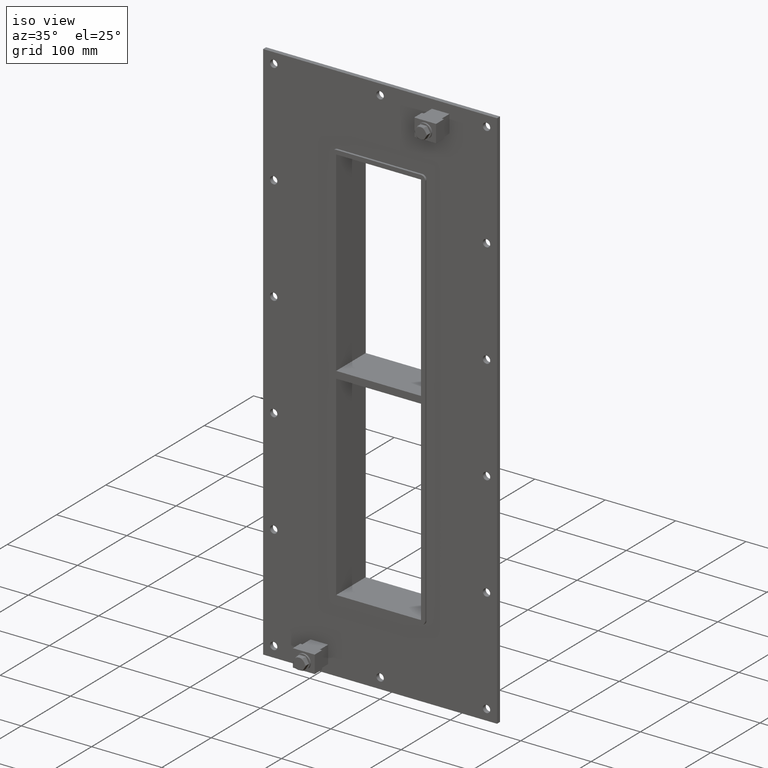
[diagram: clean part render]
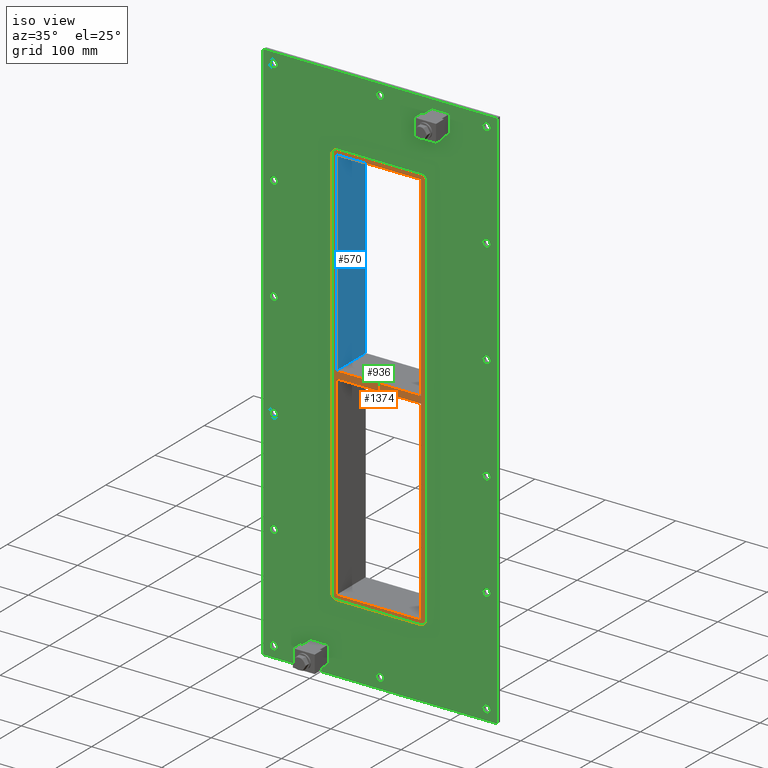
[diagram: same view with three faces highlighted in distinct colors, each labeled with its STEP entity id]
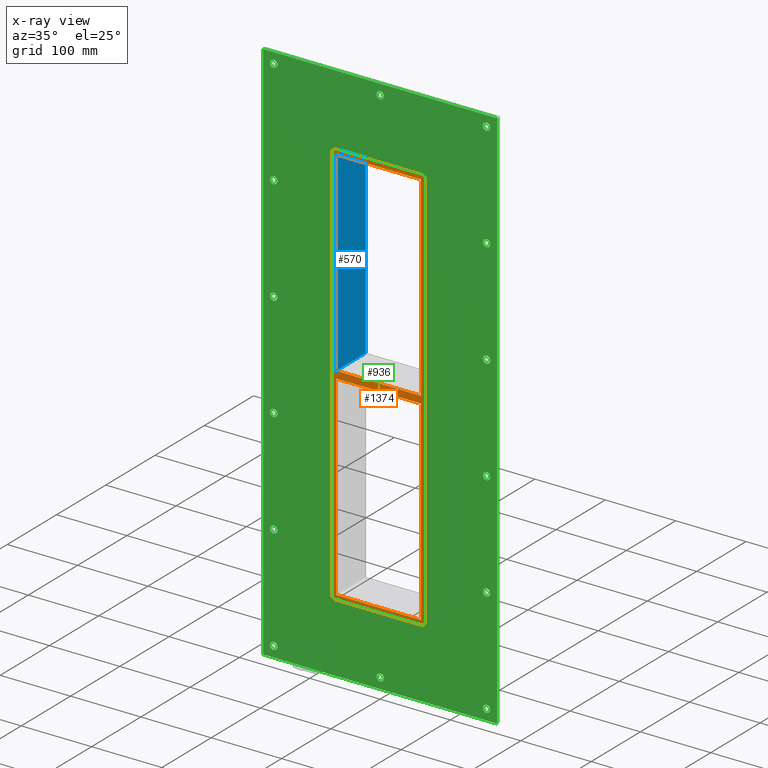
[diagram: x-ray of the same camera — body ghosted, the three highlighted faces saturated]
A machine part, iso view with three faces highlighted in distinct colors.
The next image is the same camera in x-ray (body ghosted, the three faces saturated) — at least one of them is partly hidden behind the body in this view.
Their STEP definitions:

[orange] entity #1374 — the highlighted planar face has unit normal (0, 1, 0).
#465=CARTESIAN_POINT('',(60.249999999996362,-3.0,-5.000000000010907));
#466=VERTEX_POINT('',#465);
#467=CARTESIAN_POINT('',(-60.249999999997627,-3.0,-5.000000000011369));
#468=VERTEX_POINT('',#467);
#469=CARTESIAN_POINT('',(60.249999999996362,-3.0,-5.000000000010907));
#470=DIRECTION('',(-1.0,0.0,0.0));
#471=VECTOR('',#470,120.49999999999399);
#472=LINE('',#469,#471);
#473=EDGE_CURVE('',#466,#468,#472,.T.);
#505=CARTESIAN_POINT('',(-60.249999999997634,-3.0,5.0));
#506=VERTEX_POINT('',#505);
#507=CARTESIAN_POINT('',(60.249999999999211,-3.0,5.0));
#508=VERTEX_POINT('',#507);
#509=CARTESIAN_POINT('',(-60.249999999997634,-3.0,5.0));
#510=DIRECTION('',(1.0,0.0,0.0));
#511=VECTOR('',#510,120.49999999999685);
#512=LINE('',#509,#511);
#513=EDGE_CURVE('',#506,#508,#512,.T.);
#554=CARTESIAN_POINT('',(-60.25,-3.0,283.0));
#555=VERTEX_POINT('',#554);
#562=CARTESIAN_POINT('',(-60.25,-3.0,5.0));
#563=DIRECTION('',(0.0,0.0,1.0));
#564=VECTOR('',#563,278.0);
#565=LINE('',#562,#564);
#566=EDGE_CURVE('',#506,#555,#565,.T.);
#585=CARTESIAN_POINT('',(60.25,-3.0,-283.0));
#586=VERTEX_POINT('',#585);
#593=CARTESIAN_POINT('',(60.25,-3.0,-5.000000000010886));
#594=DIRECTION('',(0.0,0.0,-1.0));
#595=VECTOR('',#594,277.99999999998909);
#596=LINE('',#593,#595);
#597=EDGE_CURVE('',#466,#586,#596,.T.);
#608=CARTESIAN_POINT('',(60.25,-3.0,283.0));
#609=VERTEX_POINT('',#608);
#610=CARTESIAN_POINT('',(60.25,-3.0,283.0));
#611=DIRECTION('',(0.0,0.0,-1.0));
#612=VECTOR('',#611,278.0);
#613=LINE('',#610,#612);
#614=EDGE_CURVE('',#609,#508,#613,.T.);
#1011=CARTESIAN_POINT('',(-60.25,-3.0,-283.0));
#1012=VERTEX_POINT('',#1011);
#1013=CARTESIAN_POINT('',(-60.25,-3.0,-283.0));
#1014=DIRECTION('',(0.0,0.0,1.0));
#1015=VECTOR('',#1014,277.99999999998863);
#1016=LINE('',#1013,#1015);
#1017=EDGE_CURVE('',#1012,#468,#1016,.T.);
#1042=CARTESIAN_POINT('',(66.249999999999986,-3.0,-283.0));
#1043=VERTEX_POINT('',#1042);
#1050=CARTESIAN_POINT('',(60.249999999999986,-3.0,-289.0));
#1051=VERTEX_POINT('',#1050);
#1052=CARTESIAN_POINT('',(60.249999999999986,-3.0,-283.0));
#1053=DIRECTION('',(0.0,1.0,0.0));
#1054=DIRECTION('',(0.707106781186548,0.0,-0.707106781186548));
#1055=AXIS2_PLACEMENT_3D('',#1052,#1053,#1054);
#1056=CIRCLE('',#1055,6.000000000000002);
#1057=EDGE_CURVE('',#1043,#1051,#1056,.T.);
#1107=CARTESIAN_POINT('',(-60.249999999999993,-3.0,-289.0));
#1108=VERTEX_POINT('',#1107);
#1109=CARTESIAN_POINT('',(-60.25,-3.0,-289.0));
#1110=DIRECTION('',(1.0,0.0,0.0));
#1111=VECTOR('',#1110,120.49999999999997);
#1112=LINE('',#1109,#1111);
#1113=EDGE_CURVE('',#1108,#1051,#1112,.T.);
#1154=CARTESIAN_POINT('',(66.249999999999986,-3.0,283.00000000000006));
#1155=VERTEX_POINT('',#1154);
#1162=CARTESIAN_POINT('',(66.249999999999986,-3.0,-282.99999999999994));
#1163=DIRECTION('',(0.0,0.0,1.0));
#1164=VECTOR('',#1163,566.0);
#1165=LINE('',#1162,#1164);
#1166=EDGE_CURVE('',#1043,#1155,#1165,.T.);
#1179=CARTESIAN_POINT('',(-66.250000000000014,-3.0,-283.0));
#1180=VERTEX_POINT('',#1179);
#1181=CARTESIAN_POINT('',(-60.25,-3.0,-283.0));
#1182=DIRECTION('',(0.0,1.0,0.0));
#1183=DIRECTION('',(-0.707106781186548,0.0,-0.707106781186548));
#1184=AXIS2_PLACEMENT_3D('',#1181,#1182,#1183);
#1185=CIRCLE('',#1184,6.000000000000002);
#1186=EDGE_CURVE('',#1108,#1180,#1185,.T.);
#1228=CARTESIAN_POINT('',(60.249999999999979,-3.0,289.00000000000006));
#1229=VERTEX_POINT('',#1228);
#1236=CARTESIAN_POINT('',(60.249999999999986,-3.0,283.00000000000006));
#1237=DIRECTION('',(0.0,1.0,0.0));
#1238=DIRECTION('',(0.707106781186548,0.0,0.707106781186548));
#1239=AXIS2_PLACEMENT_3D('',#1236,#1237,#1238);
#1240=CIRCLE('',#1239,6.000000000000002);
#1241=EDGE_CURVE('',#1229,#1155,#1240,.T.);
#1254=CARTESIAN_POINT('',(-66.250000000000014,-3.0,283.00000000000006));
#1255=VERTEX_POINT('',#1254);
#1256=CARTESIAN_POINT('',(-66.250000000000014,-3.0,283.0));
#1257=DIRECTION('',(0.0,0.0,-1.0));
#1258=VECTOR('',#1257,566.0);
#1259=LINE('',#1256,#1258);
#1260=EDGE_CURVE('',#1255,#1180,#1259,.T.);
#1301=CARTESIAN_POINT('',(-60.25,-3.0,289.00000000000006));
#1302=VERTEX_POINT('',#1301);
#1309=CARTESIAN_POINT('',(60.249999999999972,-3.0,289.00000000000006));
#1310=DIRECTION('',(-1.0,0.0,0.0));
#1311=VECTOR('',#1310,120.49999999999997);
#1312=LINE('',#1309,#1311);
#1313=EDGE_CURVE('',#1229,#1302,#1312,.T.);
#1326=CARTESIAN_POINT('',(-60.25,-3.0,283.00000000000006));
#1327=DIRECTION('',(0.0,1.0,0.0));
#1328=DIRECTION('',(-0.707106781186548,0.0,0.707106781186548));
#1329=AXIS2_PLACEMENT_3D('',#1326,#1327,#1328);
#1330=CIRCLE('',#1329,6.000000000000002);
#1331=EDGE_CURVE('',#1255,#1302,#1330,.T.);
#1337=CARTESIAN_POINT('',(-9.828716E-015,-3.0,3.900235E-014));
#1338=DIRECTION('',(0.0,1.0,0.0));
#1339=DIRECTION('',(0.0,0.0,1.0));
#1340=AXIS2_PLACEMENT_3D('',#1337,#1338,#1339);
#1341=PLANE('',#1340);
#1342=ORIENTED_EDGE('',*,*,#1186,.F.);
#1343=ORIENTED_EDGE('',*,*,#1113,.T.);
#1344=ORIENTED_EDGE('',*,*,#1057,.F.);
#1345=ORIENTED_EDGE('',*,*,#1166,.T.);
#1346=ORIENTED_EDGE('',*,*,#1241,.F.);
#1347=ORIENTED_EDGE('',*,*,#1313,.T.);
#1348=ORIENTED_EDGE('',*,*,#1331,.F.);
#1349=ORIENTED_EDGE('',*,*,#1260,.T.);
#1350=EDGE_LOOP('',(#1342,#1343,#1344,#1345,#1346,#1347,#1348,#1349));
#1351=FACE_OUTER_BOUND('',#1350,.T.);
#1352=ORIENTED_EDGE('',*,*,#566,.T.);
#1353=CARTESIAN_POINT('',(-60.25,-3.0,283.0));
#1354=DIRECTION('',(1.0,0.0,0.0));
#1355=VECTOR('',#1354,120.5);
#1356=LINE('',#1353,#1355);
#1357=EDGE_CURVE('',#555,#609,#1356,.T.);
#1358=ORIENTED_EDGE('',*,*,#1357,.T.);
#1359=ORIENTED_EDGE('',*,*,#614,.T.);
#1360=ORIENTED_EDGE('',*,*,#513,.F.);
#1361=EDGE_LOOP('',(#1352,#1358,#1359,#1360));
#1362=FACE_BOUND('',#1361,.T.);
#1363=ORIENTED_EDGE('',*,*,#473,.F.);
#1364=ORIENTED_EDGE('',*,*,#597,.T.);
#1365=CARTESIAN_POINT('',(60.25,-3.0,-283.0));
#1366=DIRECTION('',(-1.0,0.0,0.0));
#1367=VECTOR('',#1366,120.5);
#1368=LINE('',#1365,#1367);
#1369=EDGE_CURVE('',#586,#1012,#1368,.T.);
#1370=ORIENTED_EDGE('',*,*,#1369,.T.);
#1371=ORIENTED_EDGE('',*,*,#1017,.T.);
#1372=EDGE_LOOP('',(#1363,#1364,#1370,#1371));
#1373=FACE_BOUND('',#1372,.T.);
#1374=ADVANCED_FACE('',(#1351,#1362,#1373),#1341,.F.);

[blue] entity #570 — the highlighted planar face has unit normal (-1, 0, 0).
#505=CARTESIAN_POINT('',(-60.249999999997634,-3.0,5.0));
#506=VERTEX_POINT('',#505);
#523=CARTESIAN_POINT('',(-60.249999999997634,57.0,5.0));
#524=VERTEX_POINT('',#523);
#531=CARTESIAN_POINT('',(-60.25,-3.0,5.0));
#532=DIRECTION('',(0.0,1.0,0.0));
#533=VECTOR('',#532,60.000000000000007);
#534=LINE('',#531,#533);
#535=EDGE_CURVE('',#506,#524,#534,.T.);
#540=CARTESIAN_POINT('',(-60.25,0.0,-283.0));
#541=DIRECTION('',(-1.0,0.0,0.0));
#542=DIRECTION('',(0.0,0.0,1.0));
#543=AXIS2_PLACEMENT_3D('',#540,#541,#542);
#544=PLANE('',#543);
#545=ORIENTED_EDGE('',*,*,#535,.T.);
#546=CARTESIAN_POINT('',(-60.25,57.0,283.0));
#547=VERTEX_POINT('',#546);
#548=CARTESIAN_POINT('',(-60.25,57.0,283.0));
#549=DIRECTION('',(0.0,0.0,-1.0));
#550=VECTOR('',#549,278.0);
#551=LINE('',#548,#550);
#552=EDGE_CURVE('',#547,#524,#551,.T.);
#553=ORIENTED_EDGE('',*,*,#552,.F.);
#554=CARTESIAN_POINT('',(-60.25,-3.0,283.0));
#555=VERTEX_POINT('',#554);
#556=CARTESIAN_POINT('',(-60.25,-3.0,283.0));
#557=DIRECTION('',(0.0,1.0,0.0));
#558=VECTOR('',#557,60.0);
#559=LINE('',#556,#558);
#560=EDGE_CURVE('',#555,#547,#559,.T.);
#561=ORIENTED_EDGE('',*,*,#560,.F.);
#562=CARTESIAN_POINT('',(-60.25,-3.0,5.0));
#563=DIRECTION('',(0.0,0.0,1.0));
#564=VECTOR('',#563,278.0);
#565=LINE('',#562,#564);
#566=EDGE_CURVE('',#506,#555,#565,.T.);
#567=ORIENTED_EDGE('',*,*,#566,.F.);
#568=EDGE_LOOP('',(#545,#553,#561,#567));
#569=FACE_OUTER_BOUND('',#568,.T.);
#570=ADVANCED_FACE('',(#569),#544,.F.);

[green] entity #936 — the highlighted planar face has unit normal (0, 1, 0).
#84=CARTESIAN_POINT('',(-146.00000000000009,0.0,-374.00000000000006));
#85=VERTEX_POINT('',#84);
#86=CARTESIAN_POINT('',(-151.25000000000009,0.0,-374.00000000000006));
#87=DIRECTION('',(0.0,1.0,0.0));
#88=DIRECTION('',(1.0,0.0,0.0));
#89=AXIS2_PLACEMENT_3D('',#86,#87,#88);
#90=CIRCLE('',#89,5.25);
#91=EDGE_CURVE('',#85,#85,#90,.T.);
#112=CARTESIAN_POINT('',(156.59999999999997,0.0,-224.39999999999998));
#113=VERTEX_POINT('',#112);
#114=CARTESIAN_POINT('',(151.34999999999997,0.0,-224.39999999999998));
#115=DIRECTION('',(0.0,1.0,0.0));
#116=DIRECTION('',(1.0,0.0,0.0));
#117=AXIS2_PLACEMENT_3D('',#114,#115,#116);
#118=CIRCLE('',#117,5.25);
#119=EDGE_CURVE('',#113,#113,#118,.T.);
#140=CARTESIAN_POINT('',(-146.00000000000009,0.0,-224.39999999999998));
#141=VERTEX_POINT('',#140);
#142=CARTESIAN_POINT('',(-151.25000000000009,0.0,-224.39999999999998));
#143=DIRECTION('',(0.0,1.0,0.0));
#144=DIRECTION('',(1.0,0.0,0.0));
#145=AXIS2_PLACEMENT_3D('',#142,#143,#144);
#146=CIRCLE('',#145,5.25);
#147=EDGE_CURVE('',#141,#141,#146,.T.);
#168=CARTESIAN_POINT('',(156.59999999999997,0.0,-74.799999999999969));
#169=VERTEX_POINT('',#168);
#170=CARTESIAN_POINT('',(151.34999999999997,0.0,-74.799999999999969));
#171=DIRECTION('',(0.0,1.0,0.0));
#172=DIRECTION('',(1.0,0.0,0.0));
#173=AXIS2_PLACEMENT_3D('',#170,#171,#172);
#174=CIRCLE('',#173,5.25);
#175=EDGE_CURVE('',#169,#169,#174,.T.);
#196=CARTESIAN_POINT('',(-146.00000000000009,0.0,-74.799999999999969));
#197=VERTEX_POINT('',#196);
#198=CARTESIAN_POINT('',(-151.25000000000009,0.0,-74.799999999999969));
#199=DIRECTION('',(0.0,1.0,0.0));
#200=DIRECTION('',(1.0,0.0,0.0));
#201=AXIS2_PLACEMENT_3D('',#198,#199,#200);
#202=CIRCLE('',#201,5.25);
#203=EDGE_CURVE('',#197,#197,#202,.T.);
#224=CARTESIAN_POINT('',(156.59999999999997,0.0,74.80000000000004));
#225=VERTEX_POINT('',#224);
#226=CARTESIAN_POINT('',(151.34999999999997,0.0,74.80000000000004));
#227=DIRECTION('',(0.0,1.0,0.0));
#228=DIRECTION('',(1.0,0.0,0.0));
#229=AXIS2_PLACEMENT_3D('',#226,#227,#228);
#230=CIRCLE('',#229,5.25);
#231=EDGE_CURVE('',#225,#225,#230,.T.);
#252=CARTESIAN_POINT('',(-146.00000000000009,0.0,74.80000000000004));
#253=VERTEX_POINT('',#252);
#254=CARTESIAN_POINT('',(-151.25000000000009,0.0,74.80000000000004));
#255=DIRECTION('',(0.0,1.0,0.0));
#256=DIRECTION('',(1.0,0.0,0.0));
#257=AXIS2_PLACEMENT_3D('',#254,#255,#256);
#258=CIRCLE('',#257,5.25);
#259=EDGE_CURVE('',#253,#253,#258,.T.);
#280=CARTESIAN_POINT('',(156.59999999999997,0.0,224.40000000000003));
#281=VERTEX_POINT('',#280);
#282=CARTESIAN_POINT('',(151.34999999999997,0.0,224.40000000000003));
#283=DIRECTION('',(0.0,1.0,0.0));
#284=DIRECTION('',(1.0,0.0,0.0));
#285=AXIS2_PLACEMENT_3D('',#282,#283,#284);
#286=CIRCLE('',#285,5.25);
#287=EDGE_CURVE('',#281,#281,#286,.T.);
#308=CARTESIAN_POINT('',(-146.00000000000009,0.0,224.40000000000003));
#309=VERTEX_POINT('',#308);
#310=CARTESIAN_POINT('',(-151.25000000000009,0.0,224.40000000000003));
#311=DIRECTION('',(0.0,1.0,0.0));
#312=DIRECTION('',(1.0,0.0,0.0));
#313=AXIS2_PLACEMENT_3D('',#310,#311,#312);
#314=CIRCLE('',#313,5.25);
#315=EDGE_CURVE('',#309,#309,#314,.T.);
#336=CARTESIAN_POINT('',(5.29999999999994,0.0,374.00000000000006));
#337=VERTEX_POINT('',#336);
#338=CARTESIAN_POINT('',(0.049999999999937,0.0,374.00000000000006));
#339=DIRECTION('',(0.0,1.0,0.0));
#340=DIRECTION('',(1.0,0.0,0.0));
#341=AXIS2_PLACEMENT_3D('',#338,#339,#340);
#342=CIRCLE('',#341,5.25);
#343=EDGE_CURVE('',#337,#337,#342,.T.);
#364=CARTESIAN_POINT('',(5.29999999999994,0.0,-374.00000000000006));
#365=VERTEX_POINT('',#364);
#366=CARTESIAN_POINT('',(0.049999999999937,0.0,-374.00000000000006));
#367=DIRECTION('',(0.0,1.0,0.0));
#368=DIRECTION('',(1.0,0.0,0.0));
#369=AXIS2_PLACEMENT_3D('',#366,#367,#368);
#370=CIRCLE('',#369,5.25);
#371=EDGE_CURVE('',#365,#365,#370,.T.);
#392=CARTESIAN_POINT('',(156.59999999999997,0.0,-374.00000000000006));
#393=VERTEX_POINT('',#392);
#394=CARTESIAN_POINT('',(151.34999999999997,0.0,-374.00000000000006));
#395=DIRECTION('',(0.0,1.0,0.0));
#396=DIRECTION('',(1.0,0.0,0.0));
#397=AXIS2_PLACEMENT_3D('',#394,#395,#396);
#398=CIRCLE('',#397,5.25);
#399=EDGE_CURVE('',#393,#393,#398,.T.);
#420=CARTESIAN_POINT('',(-146.00000000000009,0.0,374.00000000000006));
#421=VERTEX_POINT('',#420);
#422=CARTESIAN_POINT('',(-151.25000000000009,0.0,374.00000000000006));
#423=DIRECTION('',(0.0,1.0,0.0));
#424=DIRECTION('',(1.0,0.0,0.0));
#425=AXIS2_PLACEMENT_3D('',#422,#423,#424);
#426=CIRCLE('',#425,5.25);
#427=EDGE_CURVE('',#421,#421,#426,.T.);
#448=CARTESIAN_POINT('',(156.59999999999997,0.0,374.00000000000006));
#449=VERTEX_POINT('',#448);
#450=CARTESIAN_POINT('',(151.34999999999997,0.0,374.00000000000006));
#451=DIRECTION('',(0.0,1.0,0.0));
#452=DIRECTION('',(1.0,0.0,0.0));
#453=AXIS2_PLACEMENT_3D('',#450,#451,#452);
#454=CIRCLE('',#453,5.25);
#455=EDGE_CURVE('',#449,#449,#454,.T.);
#785=CARTESIAN_POINT('',(1.535617E-014,0.0,-3.071234E-014));
#786=DIRECTION('',(0.0,1.0,0.0));
#787=DIRECTION('',(0.0,0.0,1.0));
#788=AXIS2_PLACEMENT_3D('',#785,#786,#787);
#789=PLANE('',#788);
#790=CARTESIAN_POINT('',(-166.24999999999997,0.0,389.0));
#791=VERTEX_POINT('',#790);
#792=CARTESIAN_POINT('',(166.25,0.0,389.0));
#793=VERTEX_POINT('',#792);
#794=CARTESIAN_POINT('',(-166.24999999999997,0.0,389.0));
#795=DIRECTION('',(1.0,0.0,0.0));
#796=VECTOR('',#795,332.5);
#797=LINE('',#794,#796);
#798=EDGE_CURVE('',#791,#793,#797,.T.);
#799=ORIENTED_EDGE('',*,*,#798,.F.);
#800=CARTESIAN_POINT('',(-166.24999999999997,0.0,-389.00000000000006));
#801=VERTEX_POINT('',#800);
#802=CARTESIAN_POINT('',(-166.24999999999997,0.0,-389.00000000000006));
#803=DIRECTION('',(0.0,0.0,1.0));
#804=VECTOR('',#803,778.00000000000011);
#805=LINE('',#802,#804);
#806=EDGE_CURVE('',#801,#791,#805,.T.);
#807=ORIENTED_EDGE('',*,*,#806,.F.);
#808=CARTESIAN_POINT('',(166.25,0.0,-389.00000000000006));
#809=VERTEX_POINT('',#808);
#810=CARTESIAN_POINT('',(166.25,0.0,-389.00000000000006));
#811=DIRECTION('',(-1.0,0.0,0.0));
#812=VECTOR('',#811,332.5);
#813=LINE('',#810,#812);
#814=EDGE_CURVE('',#809,#801,#813,.T.);
#815=ORIENTED_EDGE('',*,*,#814,.F.);
#816=CARTESIAN_POINT('',(166.25,0.0,389.0));
#817=DIRECTION('',(0.0,0.0,-1.0));
#818=VECTOR('',#817,778.00000000000011);
#819=LINE('',#816,#818);
#820=EDGE_CURVE('',#793,#809,#819,.T.);
#821=ORIENTED_EDGE('',*,*,#820,.F.);
#822=EDGE_LOOP('',(#799,#807,#815,#821));
#823=FACE_OUTER_BOUND('',#822,.T.);
#824=ORIENTED_EDGE('',*,*,#91,.T.);
#825=EDGE_LOOP('',(#824));
#826=FACE_BOUND('',#825,.T.);
#827=ORIENTED_EDGE('',*,*,#119,.T.);
#828=EDGE_LOOP('',(#827));
#829=FACE_BOUND('',#828,.T.);
#830=ORIENTED_EDGE('',*,*,#147,.T.);
#831=EDGE_LOOP('',(#830));
#832=FACE_BOUND('',#831,.T.);
#833=ORIENTED_EDGE('',*,*,#175,.T.);
#834=EDGE_LOOP('',(#833));
#835=FACE_BOUND('',#834,.T.);
#836=ORIENTED_EDGE('',*,*,#203,.T.);
#837=EDGE_LOOP('',(#836));
#838=FACE_BOUND('',#837,.T.);
#839=ORIENTED_EDGE('',*,*,#231,.T.);
#840=EDGE_LOOP('',(#839));
#841=FACE_BOUND('',#840,.T.);
#842=ORIENTED_EDGE('',*,*,#259,.T.);
#843=EDGE_LOOP('',(#842));
#844=FACE_BOUND('',#843,.T.);
#845=ORIENTED_EDGE('',*,*,#287,.T.);
#846=EDGE_LOOP('',(#845));
#847=FACE_BOUND('',#846,.T.);
#848=ORIENTED_EDGE('',*,*,#315,.T.);
#849=EDGE_LOOP('',(#848));
#850=FACE_BOUND('',#849,.T.);
#851=ORIENTED_EDGE('',*,*,#343,.T.);
#852=EDGE_LOOP('',(#851));
#853=FACE_BOUND('',#852,.T.);
#854=ORIENTED_EDGE('',*,*,#371,.T.);
#855=EDGE_LOOP('',(#854));
#856=FACE_BOUND('',#855,.T.);
#857=ORIENTED_EDGE('',*,*,#399,.T.);
#858=EDGE_LOOP('',(#857));
#859=FACE_BOUND('',#858,.T.);
#860=ORIENTED_EDGE('',*,*,#427,.T.);
#861=EDGE_LOOP('',(#860));
#862=FACE_BOUND('',#861,.T.);
#863=ORIENTED_EDGE('',*,*,#455,.T.);
#864=EDGE_LOOP('',(#863));
#865=FACE_BOUND('',#864,.T.);
#866=CARTESIAN_POINT('',(-60.25,0.0,289.00000000000006));
#867=VERTEX_POINT('',#866);
#868=CARTESIAN_POINT('',(-66.250000000000014,0.0,283.00000000000006));
#869=VERTEX_POINT('',#868);
#870=CARTESIAN_POINT('',(-60.25,0.0,283.00000000000006));
#871=DIRECTION('',(0.0,-1.0,0.0));
#872=DIRECTION('',(-0.707106781186548,0.0,0.707106781186548));
#873=AXIS2_PLACEMENT_3D('',#870,#871,#872);
#874=CIRCLE('',#873,6.000000000000002);
#875=EDGE_CURVE('',#867,#869,#874,.T.);
#876=ORIENTED_EDGE('',*,*,#875,.F.);
#877=CARTESIAN_POINT('',(60.249999999999986,0.0,289.00000000000006));
#878=VERTEX_POINT('',#877);
#879=CARTESIAN_POINT('',(60.249999999999993,0.0,289.00000000000006));
#880=DIRECTION('',(-1.0,0.0,0.0));
#881=VECTOR('',#880,120.5);
#882=LINE('',#879,#881);
#883=EDGE_CURVE('',#878,#867,#882,.T.);
#884=ORIENTED_EDGE('',*,*,#883,.F.);
#885=CARTESIAN_POINT('',(66.249999999999986,0.0,283.00000000000006));
#886=VERTEX_POINT('',#885);
#887=CARTESIAN_POINT('',(60.249999999999986,0.0,283.00000000000006));
#888=DIRECTION('',(0.0,-1.0,0.0));
#889=DIRECTION('',(0.707106781186548,0.0,0.707106781186548));
#890=AXIS2_PLACEMENT_3D('',#887,#888,#889);
#891=CIRCLE('',#890,6.000000000000002);
#892=EDGE_CURVE('',#886,#878,#891,.T.);
#893=ORIENTED_EDGE('',*,*,#892,.F.);
#894=CARTESIAN_POINT('',(66.249999999999986,0.0,-283.0));
#895=VERTEX_POINT('',#894);
#896=CARTESIAN_POINT('',(66.249999999999986,0.0,-283.0));
#897=DIRECTION('',(0.0,0.0,1.0));
#898=VECTOR('',#897,566.0);
#899=LINE('',#896,#898);
#900=EDGE_CURVE('',#895,#886,#899,.T.);
#901=ORIENTED_EDGE('',*,*,#900,.F.);
#902=CARTESIAN_POINT('',(60.249999999999986,0.0,-289.0));
#903=VERTEX_POINT('',#902);
#904=CARTESIAN_POINT('',(60.249999999999986,0.0,-283.0));
#905=DIRECTION('',(0.0,-1.0,0.0));
#906=DIRECTION('',(0.707106781186548,0.0,-0.707106781186548));
#907=AXIS2_PLACEMENT_3D('',#904,#905,#906);
#908=CIRCLE('',#907,6.000000000000002);
#909=EDGE_CURVE('',#903,#895,#908,.T.);
#910=ORIENTED_EDGE('',*,*,#909,.F.);
#911=CARTESIAN_POINT('',(-60.25,0.0,-289.0));
#912=VERTEX_POINT('',#911);
#913=CARTESIAN_POINT('',(-60.249999999999993,0.0,-289.0));
#914=DIRECTION('',(1.0,0.0,0.0));
#915=VECTOR('',#914,120.49999999999997);
#916=LINE('',#913,#915);
#917=EDGE_CURVE('',#912,#903,#916,.T.);
#918=ORIENTED_EDGE('',*,*,#917,.F.);
#919=CARTESIAN_POINT('',(-66.250000000000014,0.0,-283.0));
#920=VERTEX_POINT('',#919);
#921=CARTESIAN_POINT('',(-60.25,0.0,-283.0));
#922=DIRECTION('',(0.0,-1.0,0.0));
#923=DIRECTION('',(-0.707106781186548,0.0,-0.707106781186548));
#924=AXIS2_PLACEMENT_3D('',#921,#922,#923);
#925=CIRCLE('',#924,6.000000000000002);
#926=EDGE_CURVE('',#920,#912,#925,.T.);
#927=ORIENTED_EDGE('',*,*,#926,.F.);
#928=CARTESIAN_POINT('',(-66.250000000000014,0.0,283.00000000000006));
#929=DIRECTION('',(0.0,0.0,-1.0));
#930=VECTOR('',#929,566.0);
#931=LINE('',#928,#930);
#932=EDGE_CURVE('',#869,#920,#931,.T.);
#933=ORIENTED_EDGE('',*,*,#932,.F.);
#934=EDGE_LOOP('',(#876,#884,#893,#901,#910,#918,#927,#933));
#935=FACE_BOUND('',#934,.T.);
#936=ADVANCED_FACE('',(#823,#826,#829,#832,#835,#838,#841,#844,#847,#850,#853,#856,#859,#862,#865,#935),#789,.F.);